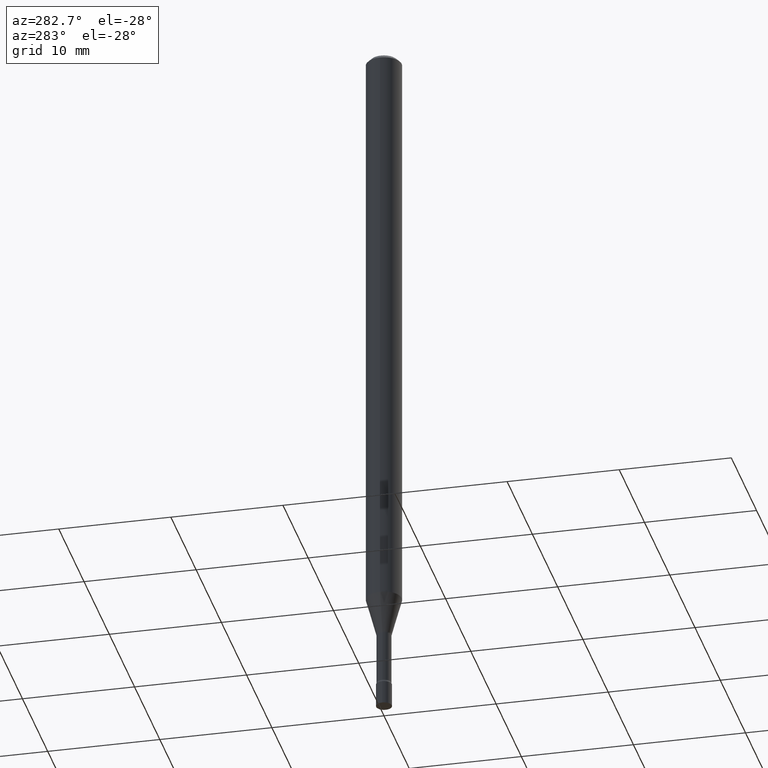
[diagram: clean part render]
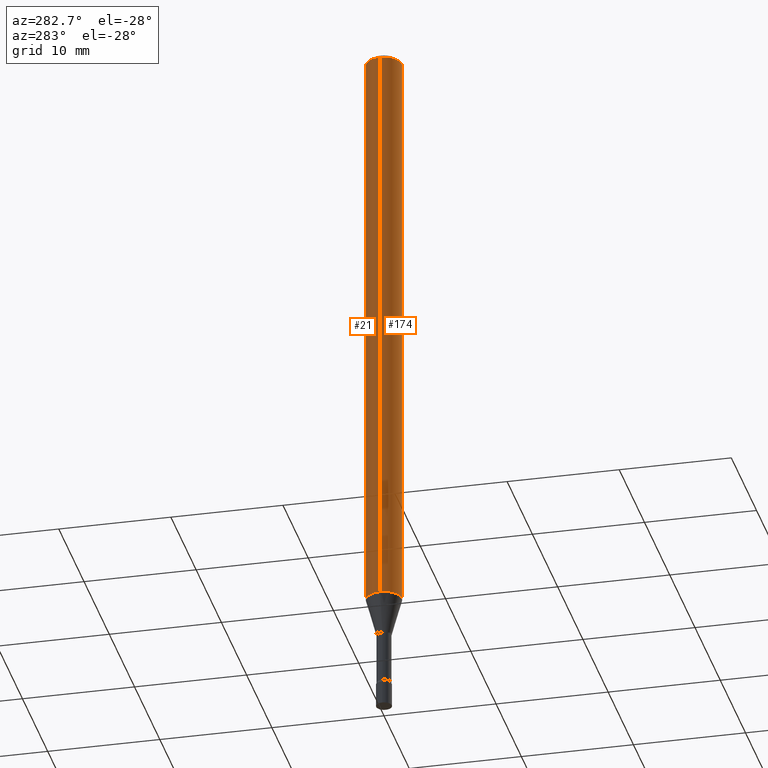
[diagram: same view with one multi-face feature highlighted, each face labeled with its STEP entity id]
A machine part, auxiliary view. The highlighted faces form ONE feature: a constant-radius fillet chain: 2 tangent blend faces with common blend radius 1.5875 mm. The faces share edges in the B-rep.
Their STEP definitions:
[1] entity #21 (Cylinder):
#1 = EDGE_CURVE ( 'NONE', #491, #335, #75, .T. ) ;
#2 = LINE ( 'NONE', #443, #513 ) ;
#7 = CARTESIAN_POINT ( 'NONE',  ( -0.06250000000000000000, -3.227588070781090630E-15, -0.01500000000000003067 ) ) ;
#21 = ADVANCED_FACE ( 'NONE', ( #107 ), #189, .T. ) ;
#31 = CARTESIAN_POINT ( 'NONE',  ( 3.668203209277712094E-31, -5.237222008264728876E-17, -0.01500000000000003067 ) ) ;
#36 = AXIS2_PLACEMENT_3D ( 'NONE', #349, #421, #307 ) ;
#62 = DIRECTION ( 'NONE',  ( -2.445468806185136877E-29, 3.491481338843145188E-15, 1.000000000000000000 ) ) ;
#75 = CIRCLE ( 'NONE', #433, 0.06250000000000000000 ) ;
#88 = DIRECTION ( 'NONE',  ( 1.000000000000000000, -6.982962677686262766E-15, 0.000000000000000000 ) ) ;
#97 = VERTEX_POINT ( 'NONE', #473 ) ;
#107 = FACE_OUTER_BOUND ( 'NONE', #209, .T. ) ;
#161 = CIRCLE ( 'NONE', #439, 0.06250000000000000000 ) ;
#165 = VECTOR ( 'NONE', #62, 39.37007874015748143 ) ;
#185 = DIRECTION ( 'NONE',  ( -2.445468806185136597E-29, 3.491481338843145583E-15, 1.000000000000000000 ) ) ;
#189 = CYLINDRICAL_SURFACE ( 'NONE', #36, 0.06250000000000000000 ) ;
#209 = EDGE_LOOP ( 'NONE', ( #486, #377, #352, #263 ) ) ;
#210 = EDGE_CURVE ( 'NONE', #493, #335, #2, .T. ) ;
#226 = CARTESIAN_POINT ( 'NONE',  ( -0.06250000000000000000, -6.846893131329596403E-15, -2.088220337902600754 ) ) ;
#229 = CARTESIAN_POINT ( 'NONE',  ( 0.06250000000000000000, -4.888073874380389458E-16, -0.01500000000000003067 ) ) ;
#263 = ORIENTED_EDGE ( 'NONE', *, *, #366, .F. ) ;
#294 = CARTESIAN_POINT ( 'NONE',  ( 5.106677696782196948E-29, -7.290982341179659020E-15, -2.088220337902600754 ) ) ;
#298 = DIRECTION ( 'NONE',  ( -2.445468806185136877E-29, 3.491481338843145188E-15, 1.000000000000000000 ) ) ;
#307 = DIRECTION ( 'NONE',  ( 1.000000000000000000, -6.982962677686266711E-15, 4.876176775795935793E-29 ) ) ;
#327 = EDGE_CURVE ( 'NONE', #97, #493, #161, .T. ) ;
#335 = VERTEX_POINT ( 'NONE', #7 ) ;
#343 = DIRECTION ( 'NONE',  ( 1.000000000000000000, -6.982962677686266711E-15, 0.000000000000000000 ) ) ;
#349 = CARTESIAN_POINT ( 'NONE',  ( 0.000000000000000000, 0.000000000000000000, 0.000000000000000000 ) ) ;
#352 = ORIENTED_EDGE ( 'NONE', *, *, #1, .F. ) ;
#366 = EDGE_CURVE ( 'NONE', #97, #491, #382, .T. ) ;
#377 = ORIENTED_EDGE ( 'NONE', *, *, #210, .T. ) ;
#382 = LINE ( 'NONE', #459, #165 ) ;
#407 = DIRECTION ( 'NONE',  ( -2.445468806185136597E-29, 3.491481338843145583E-15, 1.000000000000000000 ) ) ;
#421 = DIRECTION ( 'NONE',  ( -2.445468806185136597E-29, 3.491481338843145583E-15, 1.000000000000000000 ) ) ;
#433 = AXIS2_PLACEMENT_3D ( 'NONE', #31, #185, #343 ) ;
#439 = AXIS2_PLACEMENT_3D ( 'NONE', #294, #407, #88 ) ;
#443 = CARTESIAN_POINT ( 'NONE',  ( -0.06250000000000000000, 4.440892098500626162E-16, -3.074334431409316114E-30 ) ) ;
#459 = CARTESIAN_POINT ( 'NONE',  ( 0.06250000000000000000, -4.364351673553916694E-16, 3.047610484872459871E-30 ) ) ;
#473 = CARTESIAN_POINT ( 'NONE',  ( 0.06250000000000000000, -7.727417508535050689E-15, -2.088220337902600754 ) ) ;
#486 = ORIENTED_EDGE ( 'NONE', *, *, #327, .T. ) ;
#491 = VERTEX_POINT ( 'NONE', #229 ) ;
#493 = VERTEX_POINT ( 'NONE', #226 ) ;
#513 = VECTOR ( 'NONE', #298, 39.37007874015748143 ) ;
[2] entity #174 (Cylinder):
#2 = LINE ( 'NONE', #443, #513 ) ;
#7 = CARTESIAN_POINT ( 'NONE',  ( -0.06250000000000000000, -3.227588070781090630E-15, -0.01500000000000003067 ) ) ;
#23 = ORIENTED_EDGE ( 'NONE', *, *, #210, .F. ) ;
#34 = CARTESIAN_POINT ( 'NONE',  ( 3.668203209277712094E-31, -5.237222008264728876E-17, -0.01500000000000003067 ) ) ;
#55 = ORIENTED_EDGE ( 'NONE', *, *, #124, .F. ) ;
#62 = DIRECTION ( 'NONE',  ( -2.445468806185136877E-29, 3.491481338843145188E-15, 1.000000000000000000 ) ) ;
#79 = DIRECTION ( 'NONE',  ( 1.000000000000000000, -6.982962677686266711E-15, 4.876176775795935793E-29 ) ) ;
#97 = VERTEX_POINT ( 'NONE', #473 ) ;
#102 = AXIS2_PLACEMENT_3D ( 'NONE', #400, #481, #79 ) ;
#123 = DIRECTION ( 'NONE',  ( 1.000000000000000000, -6.982962677686262766E-15, 0.000000000000000000 ) ) ;
#124 = EDGE_CURVE ( 'NONE', #335, #491, #222, .T. ) ;
#129 = AXIS2_PLACEMENT_3D ( 'NONE', #34, #359, #363 ) ;
#149 = EDGE_CURVE ( 'NONE', #493, #97, #308, .T. ) ;
#162 = CARTESIAN_POINT ( 'NONE',  ( 5.106677696782196948E-29, -7.290982341179659020E-15, -2.088220337902600754 ) ) ;
#165 = VECTOR ( 'NONE', #62, 39.37007874015748143 ) ;
#174 = ADVANCED_FACE ( 'NONE', ( #280 ), #437, .T. ) ;
#210 = EDGE_CURVE ( 'NONE', #493, #335, #2, .T. ) ;
#222 = CIRCLE ( 'NONE', #129, 0.06250000000000000000 ) ;
#226 = CARTESIAN_POINT ( 'NONE',  ( -0.06250000000000000000, -6.846893131329596403E-15, -2.088220337902600754 ) ) ;
#229 = CARTESIAN_POINT ( 'NONE',  ( 0.06250000000000000000, -4.888073874380389458E-16, -0.01500000000000003067 ) ) ;
#253 = ORIENTED_EDGE ( 'NONE', *, *, #149, .T. ) ;
#280 = FACE_OUTER_BOUND ( 'NONE', #304, .T. ) ;
#298 = DIRECTION ( 'NONE',  ( -2.445468806185136877E-29, 3.491481338843145188E-15, 1.000000000000000000 ) ) ;
#304 = EDGE_LOOP ( 'NONE', ( #23, #253, #412, #55 ) ) ;
#308 = CIRCLE ( 'NONE', #316, 0.06250000000000000000 ) ;
#316 = AXIS2_PLACEMENT_3D ( 'NONE', #162, #394, #123 ) ;
#335 = VERTEX_POINT ( 'NONE', #7 ) ;
#359 = DIRECTION ( 'NONE',  ( -2.445468806185136597E-29, 3.491481338843145583E-15, 1.000000000000000000 ) ) ;
#363 = DIRECTION ( 'NONE',  ( 1.000000000000000000, -6.982962677686266711E-15, 0.000000000000000000 ) ) ;
#366 = EDGE_CURVE ( 'NONE', #97, #491, #382, .T. ) ;
#382 = LINE ( 'NONE', #459, #165 ) ;
#394 = DIRECTION ( 'NONE',  ( -2.445468806185136597E-29, 3.491481338843145583E-15, 1.000000000000000000 ) ) ;
#400 = CARTESIAN_POINT ( 'NONE',  ( 0.000000000000000000, 0.000000000000000000, 0.000000000000000000 ) ) ;
#412 = ORIENTED_EDGE ( 'NONE', *, *, #366, .T. ) ;
#437 = CYLINDRICAL_SURFACE ( 'NONE', #102, 0.06250000000000000000 ) ;
#443 = CARTESIAN_POINT ( 'NONE',  ( -0.06250000000000000000, 4.440892098500626162E-16, -3.074334431409316114E-30 ) ) ;
#459 = CARTESIAN_POINT ( 'NONE',  ( 0.06250000000000000000, -4.364351673553916694E-16, 3.047610484872459871E-30 ) ) ;
#473 = CARTESIAN_POINT ( 'NONE',  ( 0.06250000000000000000, -7.727417508535050689E-15, -2.088220337902600754 ) ) ;
#481 = DIRECTION ( 'NONE',  ( -2.445468806185136597E-29, 3.491481338843145583E-15, 1.000000000000000000 ) ) ;
#491 = VERTEX_POINT ( 'NONE', #229 ) ;
#493 = VERTEX_POINT ( 'NONE', #226 ) ;
#513 = VECTOR ( 'NONE', #298, 39.37007874015748143 ) ;